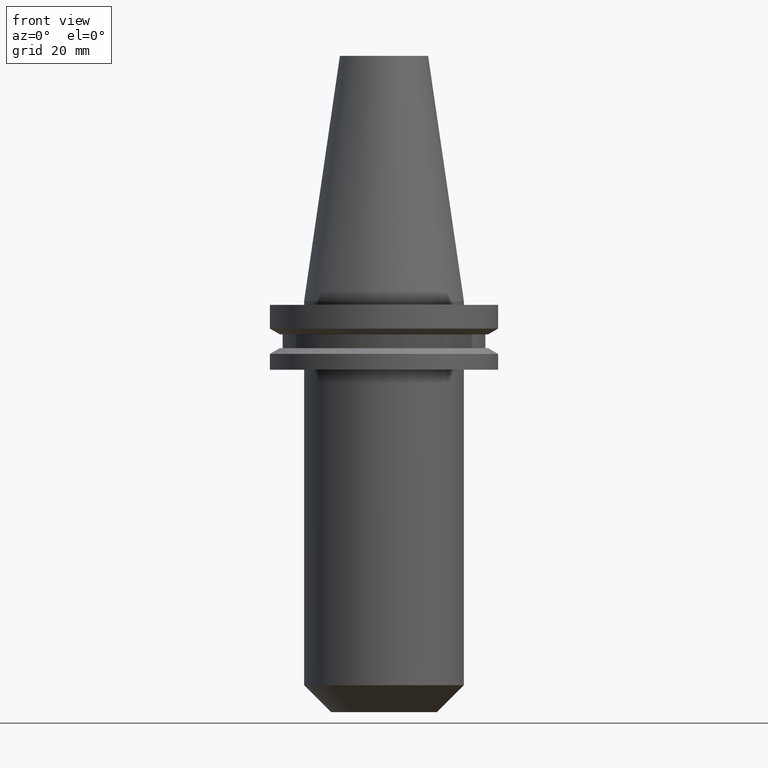
[diagram: clean part render]
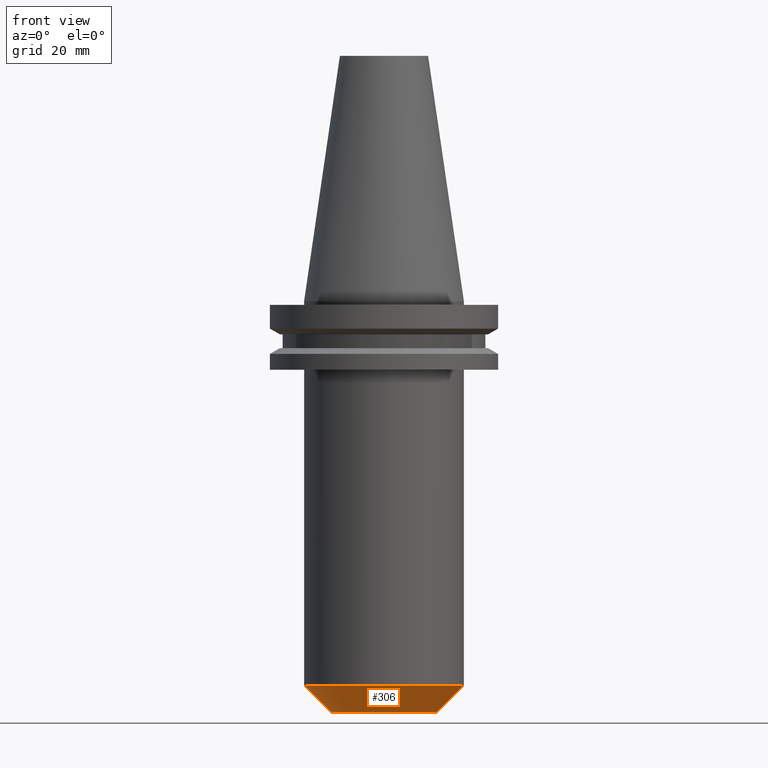
[diagram: same view with one face highlighted and labeled with its STEP entity id]
A machine part, front view. The second image highlights one B-rep face of the part: STEP entity #306.
In plain terms, the highlighted conical surface has half-angle 45 deg.
Its self-contained STEP definition (entity closure, byte-faithful):
#37 = ORIENTED_EDGE ( 'NONE', *, *, #290, .F. ) ;
#50 = CARTESIAN_POINT ( 'NONE',  ( 14.72499999999998721, 0.000000000000000000, -114.2999999999999829 ) ) ;
#102 = CARTESIAN_POINT ( 'NONE',  ( 0.000000000000000000, 0.000000000000000000, -106.8000000000000114 ) ) ;
#118 = DIRECTION ( 'NONE',  ( -0.000000000000000000, -0.000000000000000000, 1.000000000000000000 ) ) ;
#120 = CONICAL_SURFACE ( 'NONE', #604, 14.72499999999998721, 0.7853981633974507215 ) ;
#130 = CARTESIAN_POINT ( 'NONE',  ( -14.72499999999998721, 1.803292411744476082E-15, -114.2999999999999829 ) ) ;
#183 = AXIS2_PLACEMENT_3D ( 'NONE', #102, #118, #363 ) ;
#184 = AXIS2_PLACEMENT_3D ( 'NONE', #249, #501, #721 ) ;
#196 = VECTOR ( 'NONE', #353, 1000.000000000000000 ) ;
#210 = VECTOR ( 'NONE', #450, 1000.000000000000000 ) ;
#249 = CARTESIAN_POINT ( 'NONE',  ( 0.000000000000000000, 0.000000000000000000, -114.2999999999999829 ) ) ;
#265 = CARTESIAN_POINT ( 'NONE',  ( 14.72499999999998721, 0.000000000000000000, -114.2999999999999829 ) ) ;
#275 = DIRECTION ( 'NONE',  ( -0.000000000000000000, -0.000000000000000000, 1.000000000000000000 ) ) ;
#276 = EDGE_LOOP ( 'NONE', ( #37, #730, #402, #301 ) ) ;
#290 = EDGE_CURVE ( 'NONE', #390, #544, #673, .T. ) ;
#301 = ORIENTED_EDGE ( 'NONE', *, *, #559, .F. ) ;
#306 = ADVANCED_FACE ( 'NONE', ( #636 ), #120, .T. ) ;
#314 = VERTEX_POINT ( 'NONE', #749 ) ;
#353 = DIRECTION ( 'NONE',  ( 0.7071067811865492381, 0.000000000000000000, 0.7071067811865457964 ) ) ;
#360 = VERTEX_POINT ( 'NONE', #265 ) ;
#363 = DIRECTION ( 'NONE',  ( 1.000000000000000000, 0.000000000000000000, 0.000000000000000000 ) ) ;
#390 = VERTEX_POINT ( 'NONE', #520 ) ;
#402 = ORIENTED_EDGE ( 'NONE', *, *, #532, .T. ) ;
#403 = LINE ( 'NONE', #50, #196 ) ;
#407 = CARTESIAN_POINT ( 'NONE',  ( -22.22500000000000142, 2.721777511104992849E-15, -106.8000000000000114 ) ) ;
#450 = DIRECTION ( 'NONE',  ( -0.7071067811865492381, 8.659560562354953812E-17, 0.7071067811865457964 ) ) ;
#501 = DIRECTION ( 'NONE',  ( -0.000000000000000000, -0.000000000000000000, 1.000000000000000000 ) ) ;
#502 = CIRCLE ( 'NONE', #183, 22.22500000000000142 ) ;
#520 = CARTESIAN_POINT ( 'NONE',  ( -14.72499999999998721, 2.262534961424734465E-15, -114.2999999999999829 ) ) ;
#532 = EDGE_CURVE ( 'NONE', #360, #314, #403, .T. ) ;
#544 = VERTEX_POINT ( 'NONE', #407 ) ;
#559 = EDGE_CURVE ( 'NONE', #544, #314, #502, .T. ) ;
#578 = CARTESIAN_POINT ( 'NONE',  ( 0.000000000000000000, 0.000000000000000000, -114.2999999999999829 ) ) ;
#604 = AXIS2_PLACEMENT_3D ( 'NONE', #578, #275, #649 ) ;
#636 = FACE_OUTER_BOUND ( 'NONE', #276, .T. ) ;
#647 = CIRCLE ( 'NONE', #184, 14.72499999999998721 ) ;
#649 = DIRECTION ( 'NONE',  ( 1.000000000000000000, 0.000000000000000000, 0.000000000000000000 ) ) ;
#673 = LINE ( 'NONE', #130, #210 ) ;
#688 = EDGE_CURVE ( 'NONE', #390, #360, #647, .T. ) ;
#721 = DIRECTION ( 'NONE',  ( 1.000000000000000000, 0.000000000000000000, 0.000000000000000000 ) ) ;
#730 = ORIENTED_EDGE ( 'NONE', *, *, #688, .T. ) ;
#749 = CARTESIAN_POINT ( 'NONE',  ( 22.22500000000000142, 0.000000000000000000, -106.8000000000000114 ) ) ;